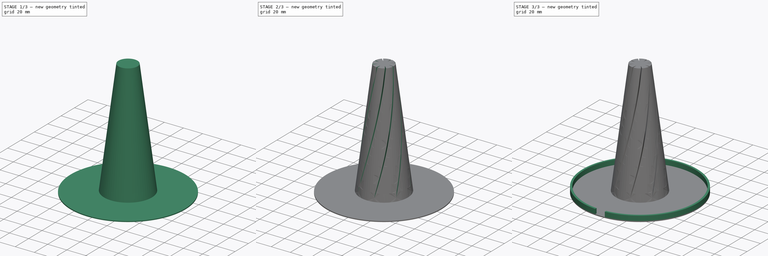
[diagram: build sequence overview — one tinted view per stage of 3, left to right]
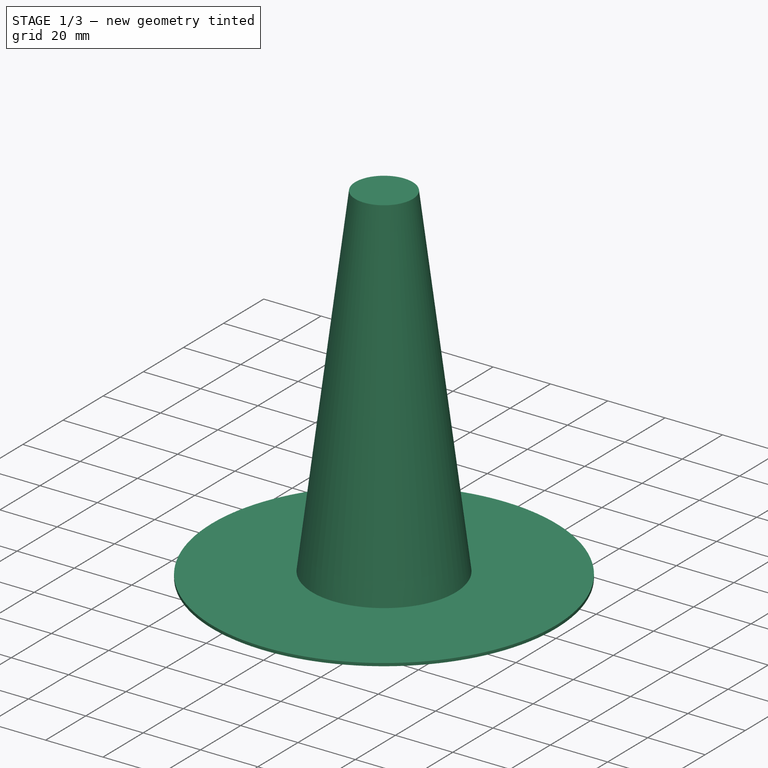
[diagram: stage 1 of 3 — iso view after this stage's code; geometry added in this stage tinted green]
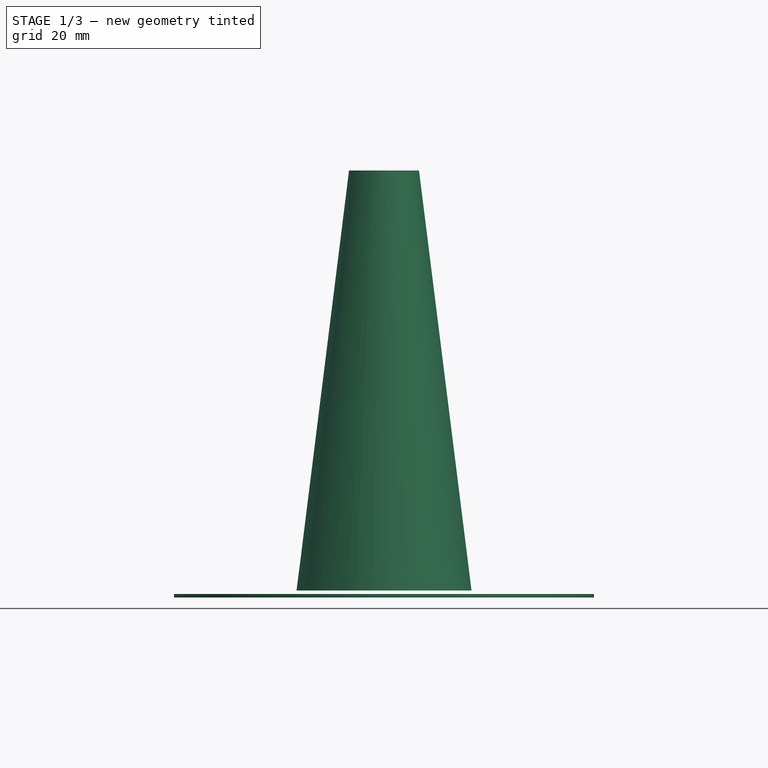
[diagram: stage 1 of 3 — front view after this stage's code; geometry added in this stage tinted green]
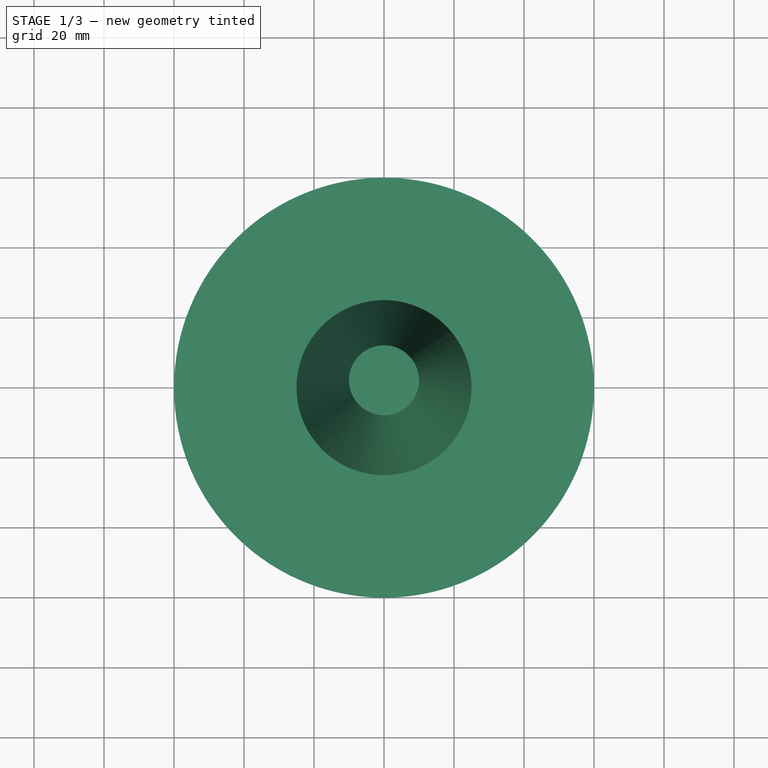
[diagram: stage 1 of 3 — top view after this stage's code; geometry added in this stage tinted green]
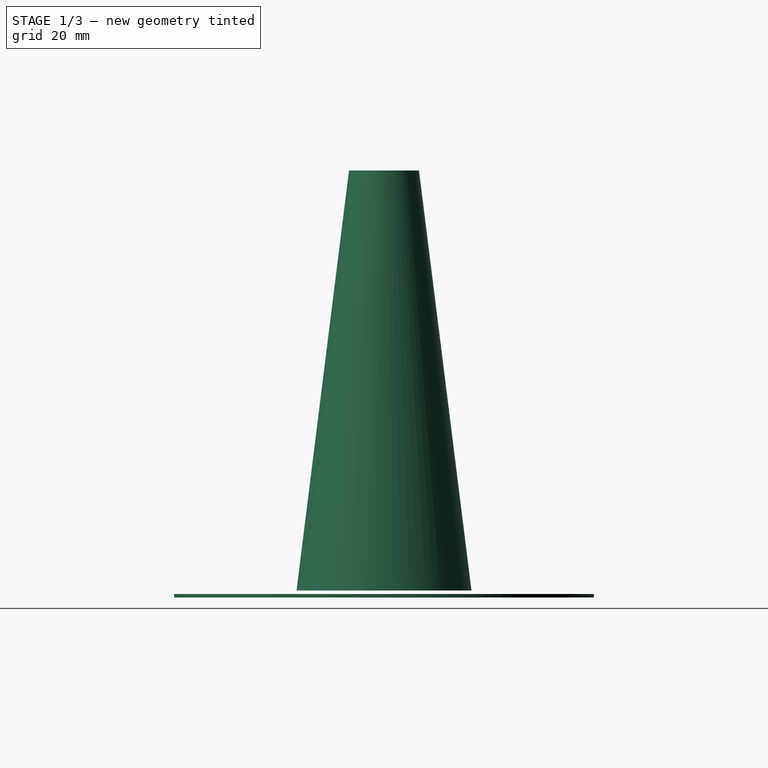
[diagram: stage 1 of 3 — right view after this stage's code; geometry added in this stage tinted green]
FCSTD DOCUMENT  (FreeCAD 2023.131R26244 +5365 (Git))
Label: Chemistry Glassware Drying Stand
License: All rights reserved
LicenseURL: http://en.wikipedia.org/wiki/All_rights_reserved
objects: Sketcher::SketchObject×3, PartDesign::Pad×2, Spreadsheet::Sheet×1, PartDesign::AdditiveCone×1, PartDesign::SubtractiveHelix×1, PartDesign::PolarPattern×1, PartDesign::SubtractiveCone×1, PartDesign::Body×1
note: 25 computed .brp shape members not serialized (recipe doc carries the construction recipe); baked Part::Feature solids carry a one-line shape summary decoded from their .brp

FEATURE [Sketcher::SketchObject] Sketch
  ArcFitTolerance = 1e-06
  AttachmentSupport = -> [XY_Plane]
  ExternalBSplineMaxDegree = 5
  ExternalBSplineTolerance = 0.0001
  FullyConstrained = true
  InternalTolerance = 1e-06
  InvalidShape = false
  MakeInternals = false
  MapMode = 5
  Support = -> [XY_Plane]
  TreeRank = 12
  ValidateShape = true
  expr: Constraints[1] = <<Parameters>>.Base_Diameter
  sketch-geometry (1):
    g0: Circle CenterX=0 CenterY=0 CenterZ=0 NormalX=0 NormalY=0 NormalZ=1 AngleXU=0 Radius=60
  constraints (2):
    c: Coincident(g0,g-1)
    c: Diameter(g0) = 120
FEATURE [Spreadsheet::Sheet] Spreadsheet  label="Parameters"
  PythonMode = false
  ShowCells = 0
  TreeRank = 10
  cells = A2=Base Diameter; B2(Base_Diameter)=120; C2=This should be wide enough that the inverted glassware doesn't tip over.; A3=Wall Thickness; B3(Wall_Thickness)=1; C3=1mm should be considered the thinnest. Other thicknesses might be useful.; A4=Side Wall Height; B4(Side_Wall_Height)=4; C4=The wall around the perimeter of the base to keep water from going everywhere.; A5=Side Wall Width; B5(Side_Wall_Width)=2; C5=Adjust this if the side wall delaminates from the base during printing.; A6=Drain Opening Width; B6(Drain_Opening_Width)=10; C6=The width of the opening in the side walls to let the water drain out.; A7=Cone Bottom Diameter; B7(Cone_Bottom_Diameter)=50; C7=Slightly bigger than the largest opening in the glassware you  plan to use.; A8=Cone Top Diameter; B8(Cone_Top_Diameter)=20; C8=Slightly smallerr than the smallest opening in the glassware you  plan to use.; A9=Cone Height; B9(Cone_Height)=120; C9=Many values will work here. The bigger the difference in the base and top of the code should result in a taller cone.; A10=Cone Angle; B10(Cone_Angle)==atan((B7 - B8) / B9) / 2; C10=This is calculated and used to create the threads on the cone.; A11=Thread Width; B11(Thread_Width)=10; C11=More-or-less determines the size of the slots along the length of the cone.
FEATURE [PartDesign::Pad] Pad  label="Base"
  AddSubType = 0
  AlongSketchNormal = false
  AutoTaperInnerAngle = true
  CheckUpToFaceLimits = true
  ClaimChildren = false
  Direction = (0,0,1)
  Fit = 0
  FitJoin = 0
  InnerFit = 0
  InnerFitJoin = 0
  InvalidShape = false
  Length = 1
  Length2 = 100
  Linearize = true
  NewSolid = false
  Profile = -> Sketch
  Suppress = false
  TaperInnerAngle = 0
  TaperInnerAngleRev = 0
  TreeRank = 13
  Type = 0
  ValidateShape = true
  _ProfileBasedVersion = 1
  expr: Length = <<Parameters>>.Wall_Thickness
FEATURE [Sketcher::SketchObject] Sketch001
  ArcFitTolerance = 1e-06
  ExternalBSplineMaxDegree = 5
  ExternalBSplineTolerance = 0.0001
  FullyConstrained = true
  InternalTolerance = 1e-06
  InvalidShape = false
  MakeInternals = false
  MapMode = 5
  Placement = pos=(0,0,1) rot=(0,0,1;0rad)
  TreeRank = 15
  ValidateShape = true
  expr: Constraints[2] = <<Parameters>>.Base_Diameter - 2 * <<Parameters>>.Side_Wall_Width
  expr: Constraints[3] = <<Parameters>>.Base_Diameter
  expr: Constraints[6] = <<Parameters>>.Drain_Opening_Width / 2
  expr: Constraints[7] = <<Parameters>>.Drain_Opening_Width / 2
  sketch-geometry (4):
    g0: ArcOfCircle CenterX=0 CenterY=0 CenterZ=0 NormalX=0 NormalY=0 NormalZ=1 AngleXU=0 Radius=58 StartAngle=4.7987 EndAngle=10.9093
    g1: ArcOfCircle CenterX=0 CenterY=0 CenterZ=0 NormalX=0 NormalY=0 NormalZ=1 AngleXU=0 Radius=60 StartAngle=4.79582 EndAngle=10.9121
    g2: LineSegment StartX=5 StartY=-57.7841 StartZ=0 EndX=5 EndY=-59.7913 EndZ=0
    g3: LineSegment StartX=-5 StartY=-57.7841 StartZ=0 EndX=-5 EndY=-59.7913 EndZ=0
  constraints (12):
    c: Coincident(g0,g-1)
    c: Coincident(g1,g0)
    c: Diameter(g0) = 116
    c: Diameter(g1) = 120
    c: Vertical(g2)
    c: Vertical(g3)
    c: DistanceX(g3,g0) = 5
    c: DistanceX(g0,g2) = 5
    c: Coincident(g1,g3)
    c: Coincident(g1,g2)
    c: Coincident(g0,g3)
    c: Coincident(g0,g2)
FEATURE [PartDesign::AdditiveCone] Cone
  AddSubType = 0
  Angle = 360
  AttacherType = Attacher::AttachEngine3D
  AttachmentOffset = pos=(0,0,1) rot=(0,0,1;0rad)
  BaseFeature = -> Pad
  Height = 120
  InvalidShape = false
  MapMode = 5
  NewSolid = false
  Placement = pos=(0,0,2) rot=(0,0,1;0rad)
  Radius1 = 25
  Radius2 = 10
  Suppress = false
  TreeRank = 17
  ValidateShape = true
  expr: Height = <<Parameters>>.Cone_Height
  expr: Radius1 = Spreadsheet.Cone_Bottom_Diameter / 2
  expr: Radius2 = Spreadsheet.Cone_Top_Diameter / 2
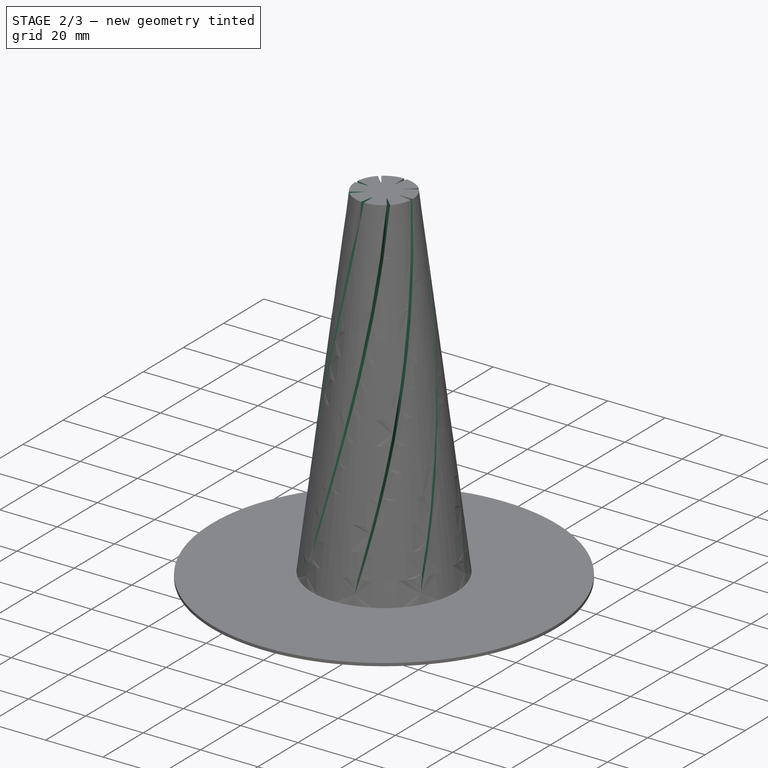
[diagram: stage 2 of 3 — iso view after this stage's code; geometry added in this stage tinted green]
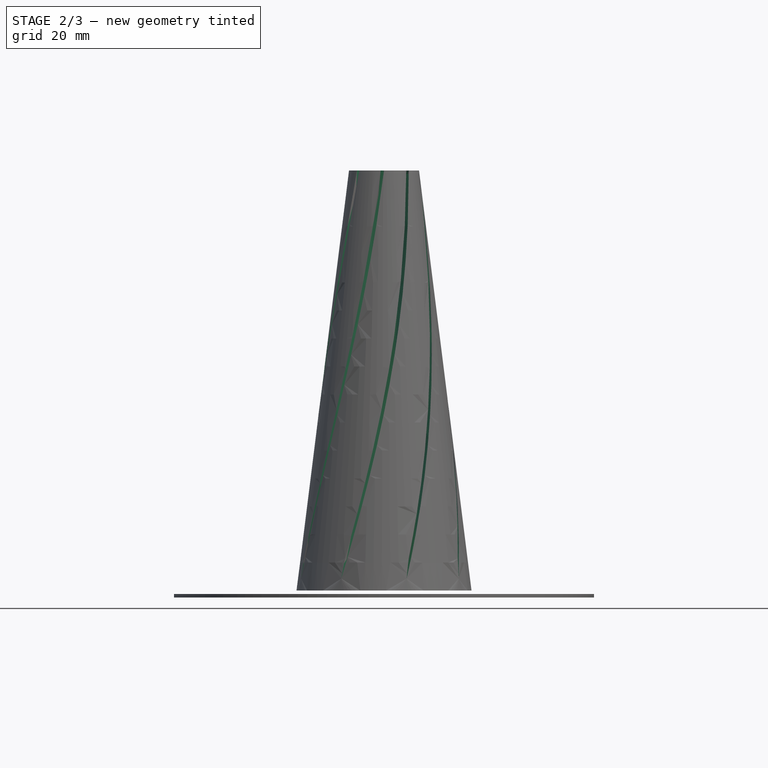
[diagram: stage 2 of 3 — front view after this stage's code; geometry added in this stage tinted green]
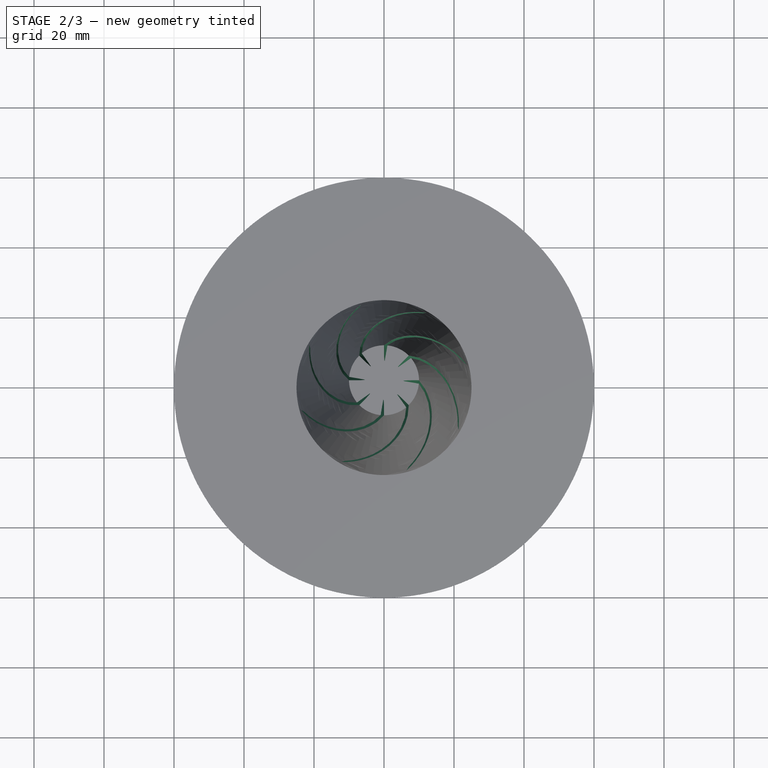
[diagram: stage 2 of 3 — top view after this stage's code; geometry added in this stage tinted green]
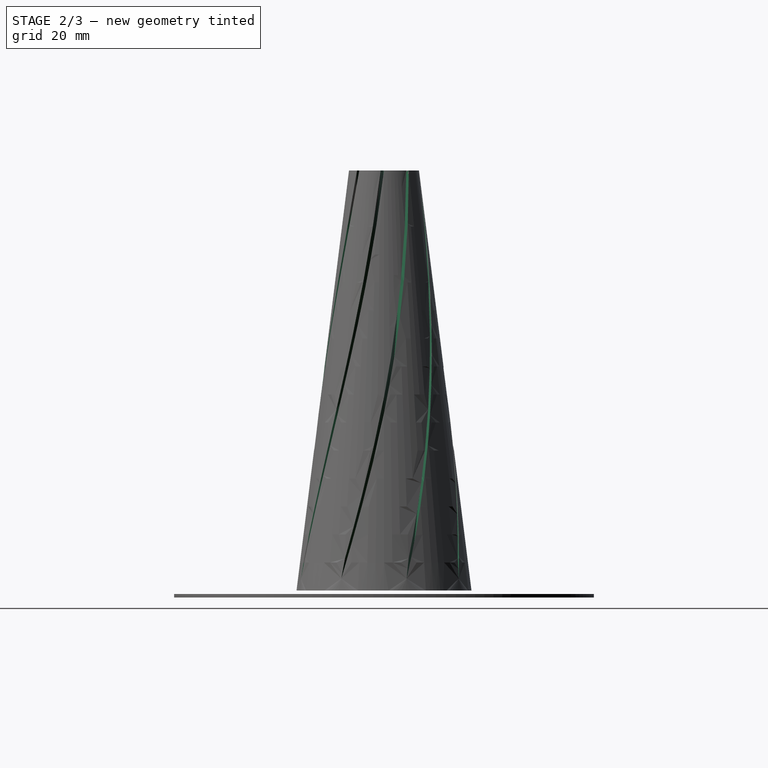
[diagram: stage 2 of 3 — right view after this stage's code; geometry added in this stage tinted green]
FEATURE [Sketcher::SketchObject] Sketch002
  ArcFitTolerance = 1e-06
  AttachmentSupport = -> [XZ_Plane]
  ExternalBSplineMaxDegree = 5
  ExternalBSplineTolerance = 0.0001
  FullyConstrained = true
  InternalTolerance = 1e-06
  InvalidShape = false
  MakeInternals = false
  MapMode = 5
  Placement = pos=(0,0,0) rot=(1,0,0;1.5708rad)
  Support = -> [XZ_Plane]
  TreeRank = 18
  ValidateShape = true
  expr: Constraints[5] = <<Parameters>>.Cone_Height + <<Parameters>>.Wall_Thickness
  expr: Constraints[6] = Spreadsheet.Cone_Top_Diameter / 2
  sketch-geometry (2):
    g0: LineSegment StartX=10 StartY=131 StartZ=0 EndX=10 EndY=121 EndZ=0
    g1: ArcOfCircle CenterX=10 CenterY=126 CenterZ=0 NormalX=0 NormalY=0 NormalZ=1 AngleXU=0 Radius=5 StartAngle=1.5708 EndAngle=4.71239
  constraints (7):
    c: Vertical(g0)
    c: Distance(g0,g0) = 10
    c: Coincident(g1,g0)
    c: Coincident(g1,g0)
    c: PointOnObject(g1,g0)
    c: DistanceY(g-1,g0) = 121
    c: DistanceX(g-1,g0) = 10
FEATURE [PartDesign::SubtractiveHelix] Helix
  AddSubType = 1
  Angle = 7.01812
  Axis = (0,-2e-16,1)
  Base = (0,0,0)
  BaseFeature = -> Cone
  ClaimChildren = false
  Fit = 0
  FitJoin = 0
  Growth = 0
  HasBeenEdited = true
  Height = 120
  InnerFit = 0
  InnerFitJoin = 0
  InvalidShape = false
  LeftHanded = false
  Linearize = true
  Mode = 0
  NewSolid = false
  Outside = false
  Pitch = 600
  Profile = -> Sketch002
  ReferenceAxis = -> Sketch002 [V_Axis]
  Reversed = true
  Suppress = false
  TreeRank = 19
  Turns = 0.2
  ValidateShape = true
  _ProfileBasedVersion = 1
  expr: Angle = <<Parameters>>.Cone_Angle
  expr: Height = <<Parameters>>.Cone_Height
  expr: Pitch = <<Parameters>>.Cone_Height * 5
FEATURE [PartDesign::PolarPattern] PolarPattern
  AddSubType = 0
  Angle = 360
  Axis = -> Z_Axis
  BaseFeature = -> Helix
  CopyShape = false
  InvalidShape = false
  NewSolid = false
  Occurrences = 8
  OriginalSubs = -> [Helix]
  Originals = -> [Helix]
  ParallelTransform = true
  Reversed = true
  SubTransform = true
  Suppress = false
  TreeRank = 20
  ValidateShape = true
  _Version = 3
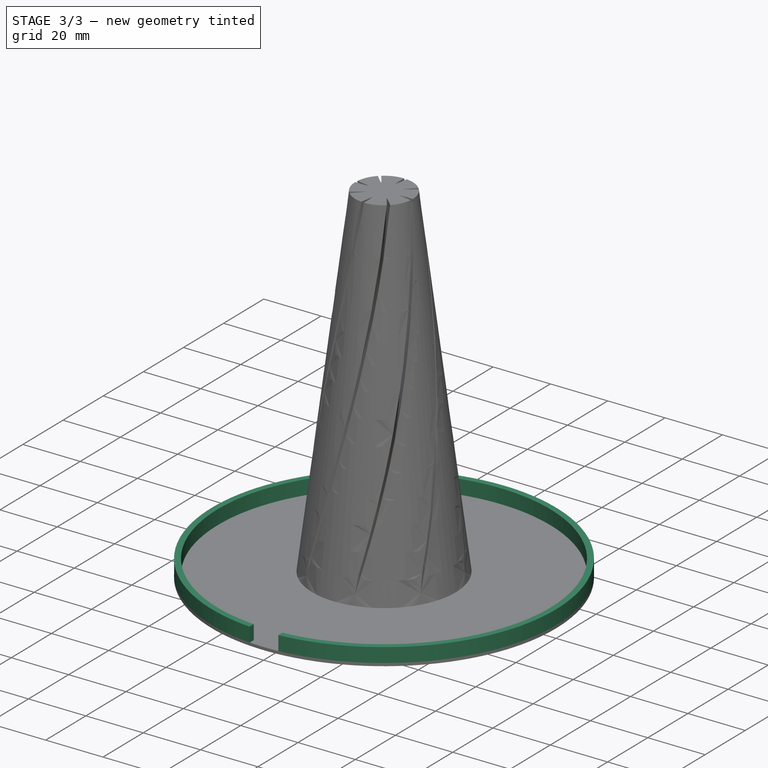
[diagram: stage 3 of 3 — iso view after this stage's code; geometry added in this stage tinted green]
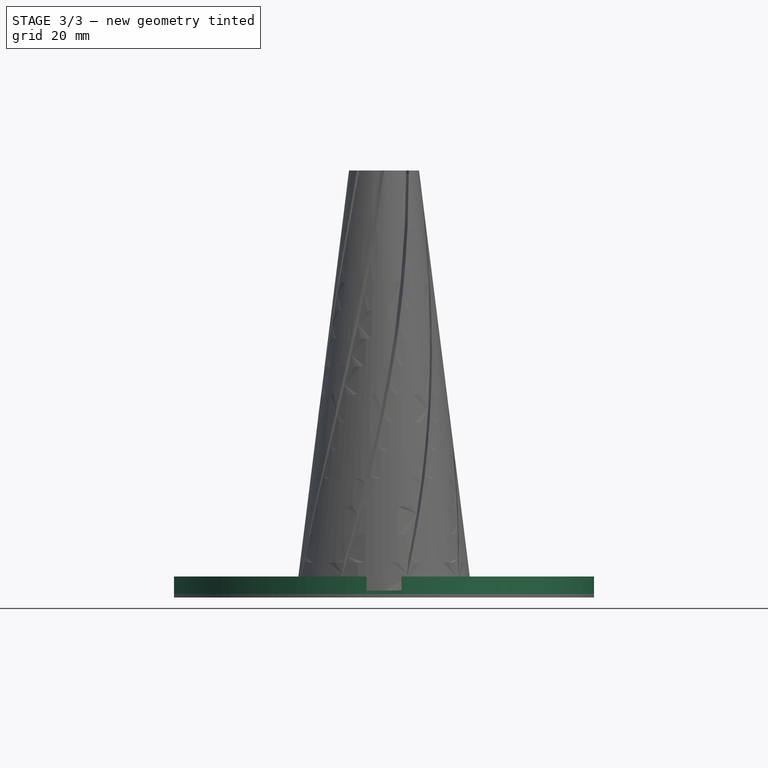
[diagram: stage 3 of 3 — front view after this stage's code; geometry added in this stage tinted green]
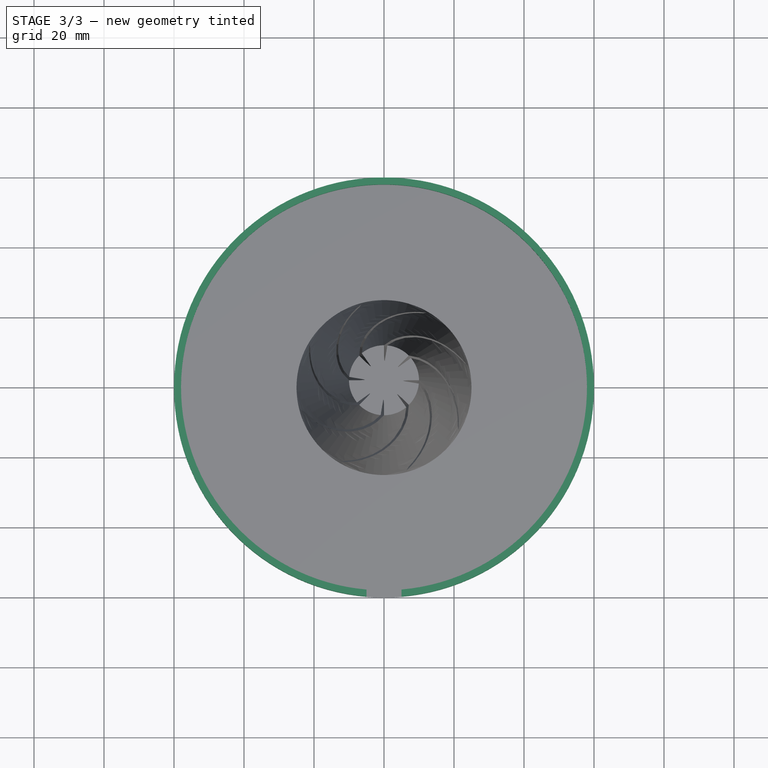
[diagram: stage 3 of 3 — top view after this stage's code; geometry added in this stage tinted green]
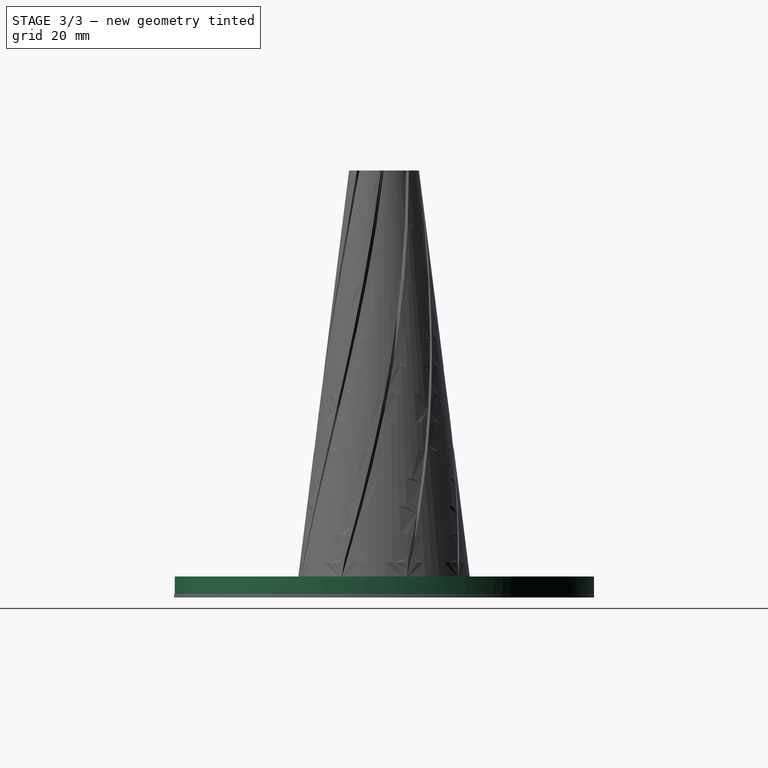
[diagram: stage 3 of 3 — right view after this stage's code; geometry added in this stage tinted green]
FEATURE [PartDesign::SubtractiveCone] Cone001
  AddSubType = 1
  Angle = 360
  AttacherType = Attacher::AttachEngine3D
  BaseFeature = -> PolarPattern
  Height = 120
  InvalidShape = false
  NewSolid = false
  Radius1 = 18
  Radius2 = 3
  Suppress = false
  TreeRank = 21
  ValidateShape = true
  expr: Height = <<Parameters>>.Cone_Height
  expr: Radius1 = Spreadsheet.Cone_Bottom_Diameter / 2 - <<Parameters>>.Thread_Width / 2 - <<Parameters>>.Wall_Thickness * 2
  expr: Radius2 = max(0, Spreadsheet.Cone_Top_Diameter / 2 - <<Parameters>>.Thread_Width / 2 - <<Parameters>>.Wall_Thickness * 2)
FEATURE [PartDesign::Pad] Pad001
  AddSubType = 0
  AlongSketchNormal = false
  AutoTaperInnerAngle = true
  BaseFeature = -> Cone001
  CheckUpToFaceLimits = true
  ClaimChildren = false
  Direction = (0,0,1)
  Fit = 0
  FitJoin = 0
  InnerFit = 0
  InnerFitJoin = 0
  InvalidShape = false
  Length = 5
  Length2 = 100
  Linearize = true
  NewSolid = false
  Profile = -> Sketch001
  Suppress = false
  TaperInnerAngle = 0
  TaperInnerAngleRev = 0
  TreeRank = 22
  Type = 0
  ValidateShape = true
  _ProfileBasedVersion = 1
  expr: Length = <<Parameters>>.Wall_Thickness + <<Parameters>>.Side_Wall_Height
FEATURE [PartDesign::Body] Body
  AutoGroupSolids = false
  ClaimAllChildren = false
  ExportMode = 0
  Group = -> [Sketch,Pad,Sketch001,Cone,Sketch002,Helix,PolarPattern,Cone001,Pad001]
  InvalidShape = false
  Origin = -> Origin
  Tip = -> Pad001
  TreeRank = 11
  ValidateShape = true
  _ExportChildren = -> [Pad,Cone,Helix,PolarPattern,Cone001,Pad001]
  _GroupVersion = 1
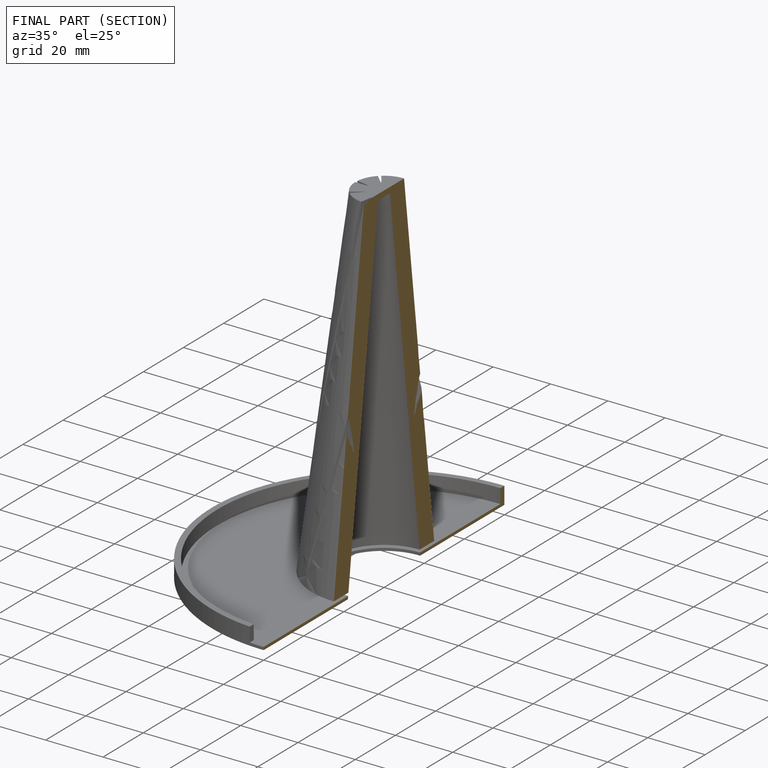
[diagram: finished part — half-section view (interior)]
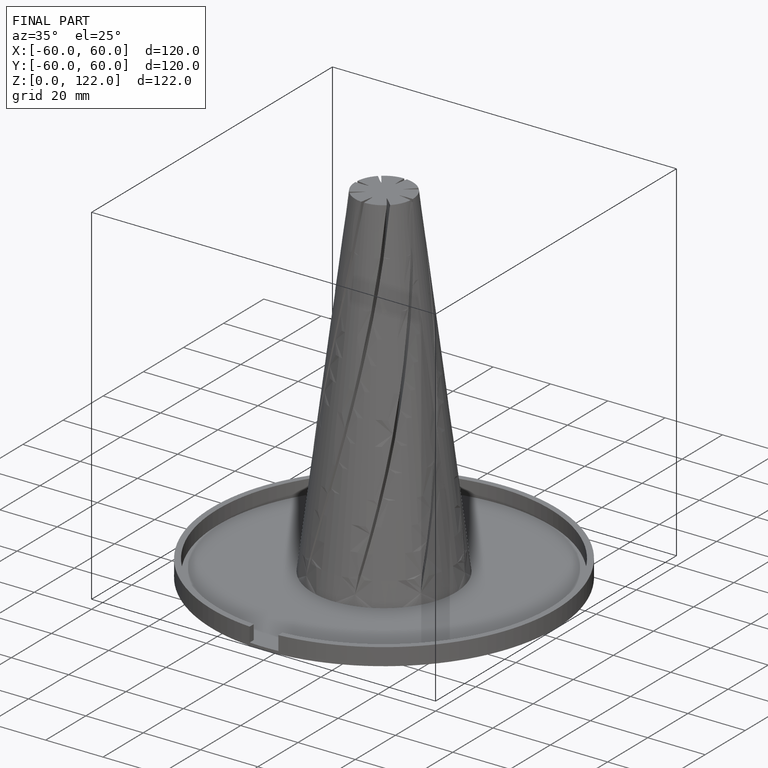
[diagram: finished part — iso view with bounding-box wireframe]
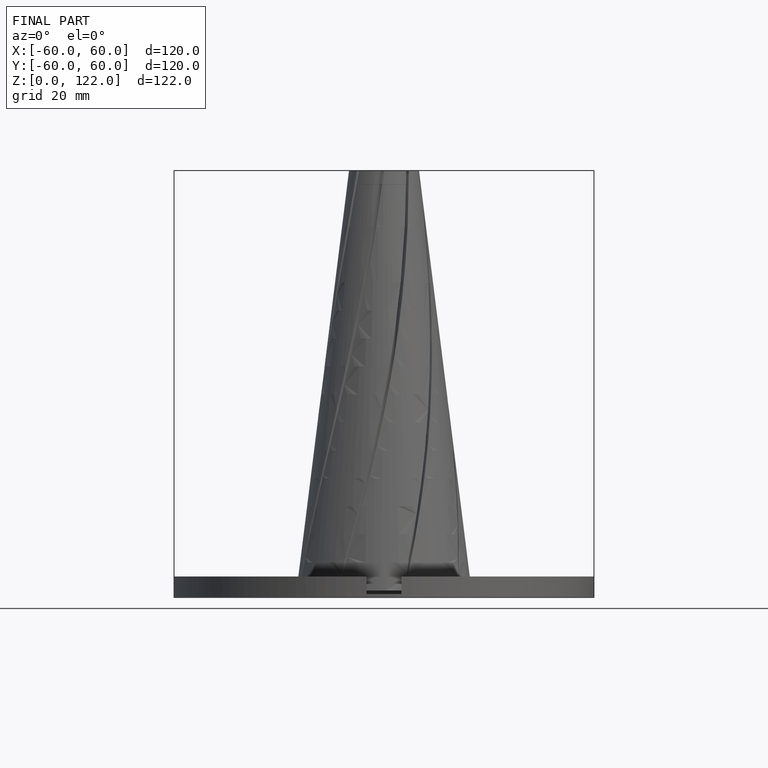
[diagram: finished part — front view with bounding-box wireframe]
